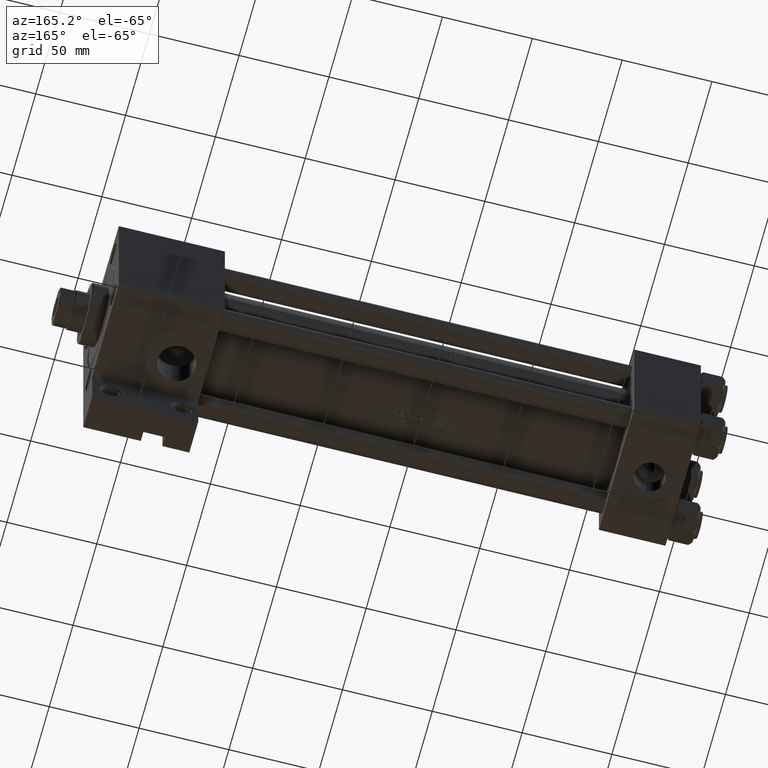
[diagram: clean part render]
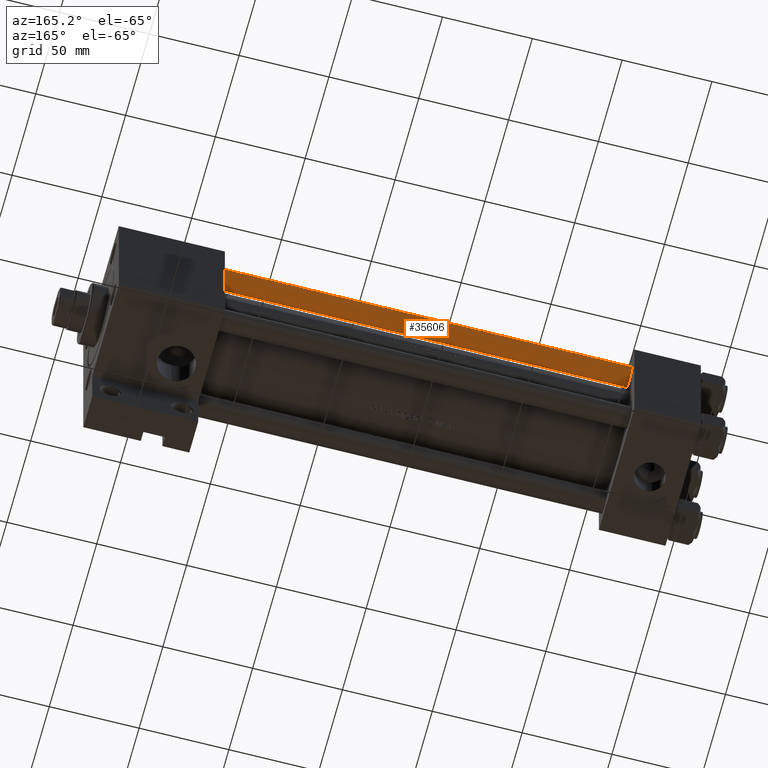
[diagram: same view with one face highlighted and labeled with its STEP entity id]
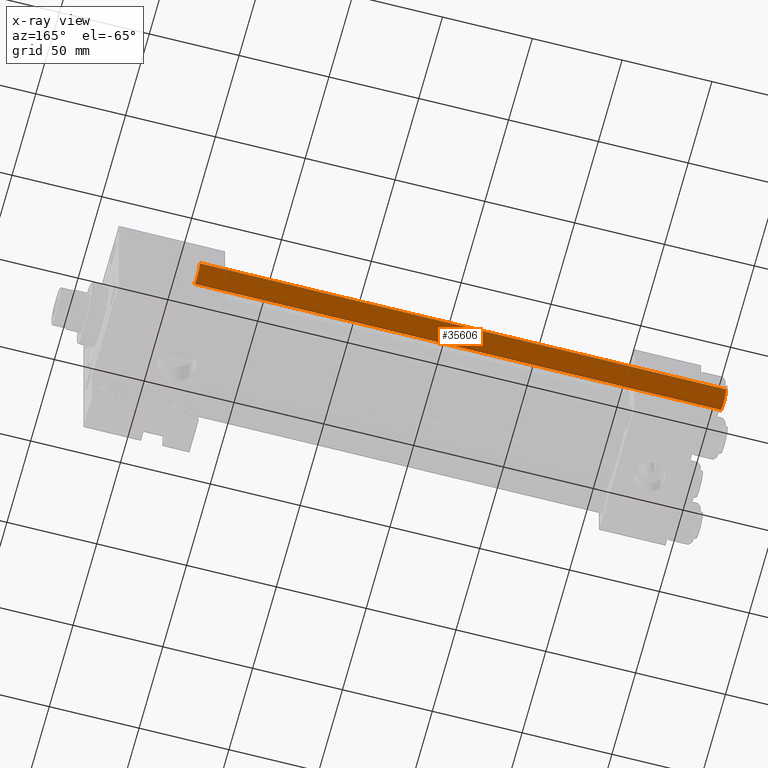
[diagram: x-ray of the same camera — body ghosted, the highlighted face saturated]
A machine part, auxiliary view. The second image highlights one B-rep face of the part: STEP entity #35606.
The next image is the same camera in x-ray: the body ghosted, the highlighted face saturated — about 0% of this face is hidden behind the body in this view.
In plain terms, the highlighted cylindrical surface (edge-blend (fillet) strip) has radius 6 mm, axis along (1, -0, 0).
Its self-contained STEP definition (entity closure, byte-faithful):
#594 = VECTOR ( 'NONE', #1872, 1000.000000000000000 ) ;
#1872 = DIRECTION ( 'NONE',  ( -0.000000000000000000, -0.000000000000000000, -1.000000000000000000 ) ) ;
#2845 = DIRECTION ( 'NONE',  ( -0.000000000000000000, -0.000000000000000000, -1.000000000000000000 ) ) ;
#4630 = VERTEX_POINT ( 'NONE', #43231 ) ;
#5980 = CARTESIAN_POINT ( 'NONE',  ( 6.000000000000000888, 7.347880794884120722E-16, 294.0000000000000000 ) ) ;
#6382 = DIRECTION ( 'NONE',  ( -0.000000000000000000, -0.000000000000000000, 1.000000000000000000 ) ) ;
#7026 = EDGE_CURVE ( 'NONE', #22407, #46751, #38450, .T. ) ;
#8250 = DIRECTION ( 'NONE',  ( 0.000000000000000000, 0.000000000000000000, -1.000000000000000000 ) ) ;
#8702 = ORIENTED_EDGE ( 'NONE', *, *, #21560, .T. ) ;
#9257 = CYLINDRICAL_SURFACE ( 'NONE', #45944, 6.000000000000000888 ) ;
#10267 = CARTESIAN_POINT ( 'NONE',  ( -6.000000000000000888, 0.000000000000000000, 0.5000000000000559552 ) ) ;
#13095 = DIRECTION ( 'NONE',  ( 1.000000000000000000, 0.000000000000000000, 0.000000000000000000 ) ) ;
#15065 = EDGE_LOOP ( 'NONE', ( #8702, #41682, #25855, #23111 ) ) ;
#18605 = CIRCLE ( 'NONE', #30133, 6.000000000000000888 ) ;
#18827 = CARTESIAN_POINT ( 'NONE',  ( 0.000000000000000000, 0.000000000000000000, 293.5000000000000568 ) ) ;
#20148 = CARTESIAN_POINT ( 'NONE',  ( -6.000000000000000888, 0.000000000000000000, 294.0000000000000000 ) ) ;
#21096 = LINE ( 'NONE', #5980, #44957 ) ;
#21560 = EDGE_CURVE ( 'NONE', #22407, #4630, #18605, .T. ) ;
#21854 = CARTESIAN_POINT ( 'NONE',  ( 6.000000000000000888, 7.347880794884120722E-16, 0.5000000000000559552 ) ) ;
#22407 = VERTEX_POINT ( 'NONE', #28258 ) ;
#23111 = ORIENTED_EDGE ( 'NONE', *, *, #7026, .F. ) ;
#23923 = CARTESIAN_POINT ( 'NONE',  ( 0.000000000000000000, 0.000000000000000000, 294.0000000000000000 ) ) ;
#24663 = EDGE_CURVE ( 'NONE', #4630, #36395, #21096, .T. ) ;
#25855 = ORIENTED_EDGE ( 'NONE', *, *, #38834, .T. ) ;
#28258 = CARTESIAN_POINT ( 'NONE',  ( -6.000000000000000888, 0.000000000000000000, 293.5000000000000568 ) ) ;
#30133 = AXIS2_PLACEMENT_3D ( 'NONE', #18827, #8250, #37599 ) ;
#30193 = DIRECTION ( 'NONE',  ( -0.000000000000000000, -0.000000000000000000, -1.000000000000000000 ) ) ;
#34474 = CIRCLE ( 'NONE', #38344, 6.000000000000000888 ) ;
#35225 = CARTESIAN_POINT ( 'NONE',  ( 0.000000000000000000, 0.000000000000000000, 0.5000000000000559552 ) ) ;
#35606 = ADVANCED_FACE ( 'NONE', ( #42246 ), #9257, .T. ) ;
#36395 = VERTEX_POINT ( 'NONE', #21854 ) ;
#37599 = DIRECTION ( 'NONE',  ( 1.000000000000000000, 0.000000000000000000, 0.000000000000000000 ) ) ;
#38344 = AXIS2_PLACEMENT_3D ( 'NONE', #35225, #6382, #13095 ) ;
#38369 = DIRECTION ( 'NONE',  ( -1.000000000000000000, 0.000000000000000000, 0.000000000000000000 ) ) ;
#38450 = LINE ( 'NONE', #20148, #594 ) ;
#38834 = EDGE_CURVE ( 'NONE', #36395, #46751, #34474, .T. ) ;
#41682 = ORIENTED_EDGE ( 'NONE', *, *, #24663, .T. ) ;
#42246 = FACE_OUTER_BOUND ( 'NONE', #15065, .T. ) ;
#43231 = CARTESIAN_POINT ( 'NONE',  ( 6.000000000000000888, 7.347880794884120722E-16, 293.5000000000000568 ) ) ;
#44957 = VECTOR ( 'NONE', #2845, 1000.000000000000000 ) ;
#45944 = AXIS2_PLACEMENT_3D ( 'NONE', #23923, #30193, #38369 ) ;
#46751 = VERTEX_POINT ( 'NONE', #10267 ) ;